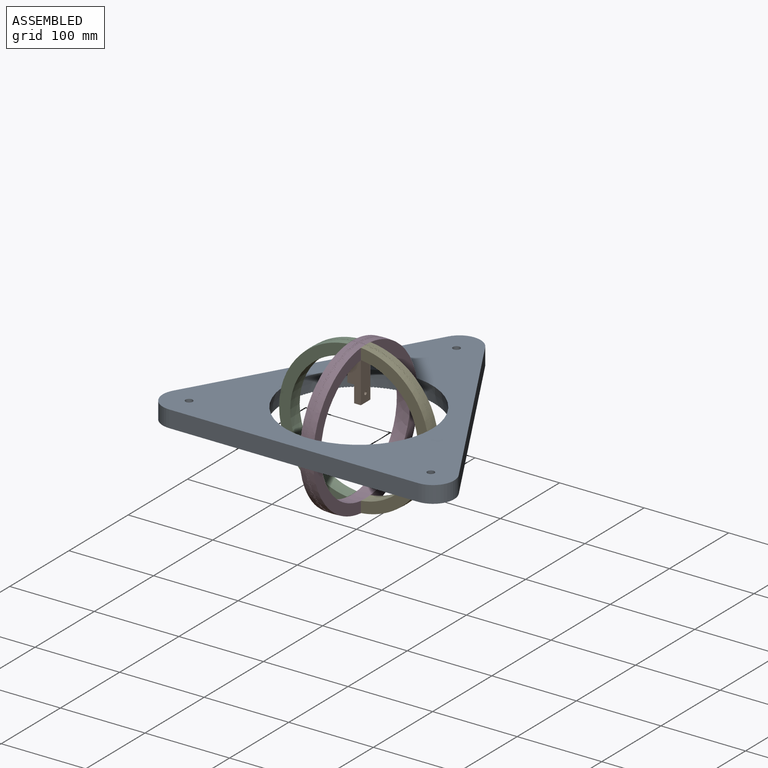
[diagram: assembled view]
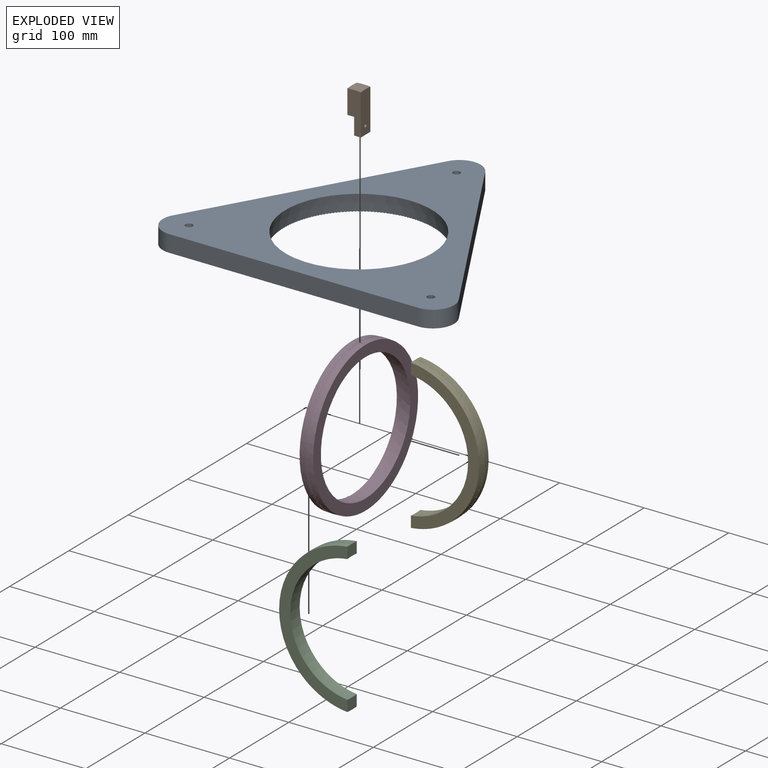
[diagram: exploded view]
GUIDED TOUR — MATED ASSEMBLY (Onshape document 3b96f11bba7c350fbcad6315, AutoMate assembly 3b96f11bba7c350fbcad6315_d8b739d6b2a3172a964b015b_78b090db85375e08f70aae51_default)

This assembly has 5 components, labeled P0..P4 below (a component is one placed occurrence of a part; the same part can appear more than once), held together by 4 mates. A mate is a constraint between two components; its type names the relative motion it leaves free:
  BALL — leaves all rotation about the listed point free (a ball joint),
  FASTENED — locks the two components together rigidly (no relative motion).
Axis/direction vectors are unit vectors and 'through' points are millimeter coordinates, both in the assembly's world frame.

MATES
  1. FASTENED "Fastened 3": P1 <-> P4, direction (0.000, 0.000, 1.000) through (-41.39, -45.96, -4.62) mm
  2. FASTENED "Fastened 1": P2 <-> P3, direction (1.000, 0.000, 0.000) through (-57.39, -53.96, 2.19) mm
  3. FASTENED "Fastened 2": P4 <-> P3, direction (-1.000, 0.000, 0.000) through (-41.39, -53.96, 2.19) mm
  4. BALL "Ball 1": P3 <-> P0, direction (0.000, 0.000, 1.000) through (-49.39, -53.96, -79.95) mm

ASSEMBLY ORDER
  1. P3 — the base component [order verified]
  2. P4 [order verified]
  3. P0 [order verified]
  4. P1 [order verified]
  5. P2 [order verified]
(P2 verified with a relaxed clearance tolerance: the source model stores slight part interference there.)
Order-tag legend:
  [order verified] — this step's position reverses a verified removal order: the component was checked to insert without passing through the ones already placed.

Of the 5 components, 1 carries the full construction recipe — the FeatureScript program that regenerates the part's solid from scratch; the rest are supplied as boundary geometry only.
Each toured component is shown spotlighted twice — in the assembled view, then in the exploded view, where a leader line traces a displaced component back to its assembled socket (saturated green if recipe-attached, orange if geometry-only; every other component desaturated gray) — followed by its recipe or geometry summary and the mates that hold it.
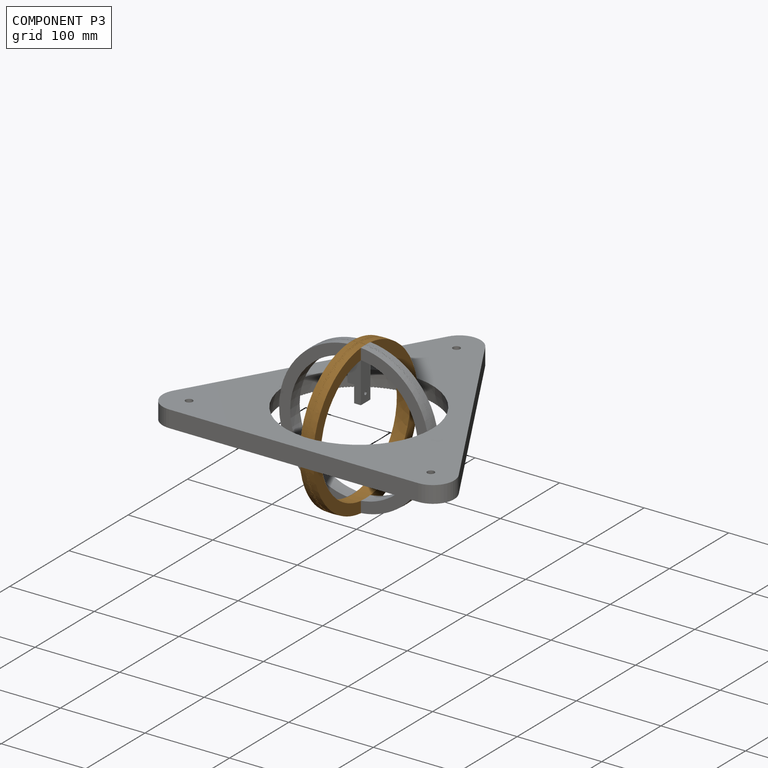
[diagram: component P3 — assembled]
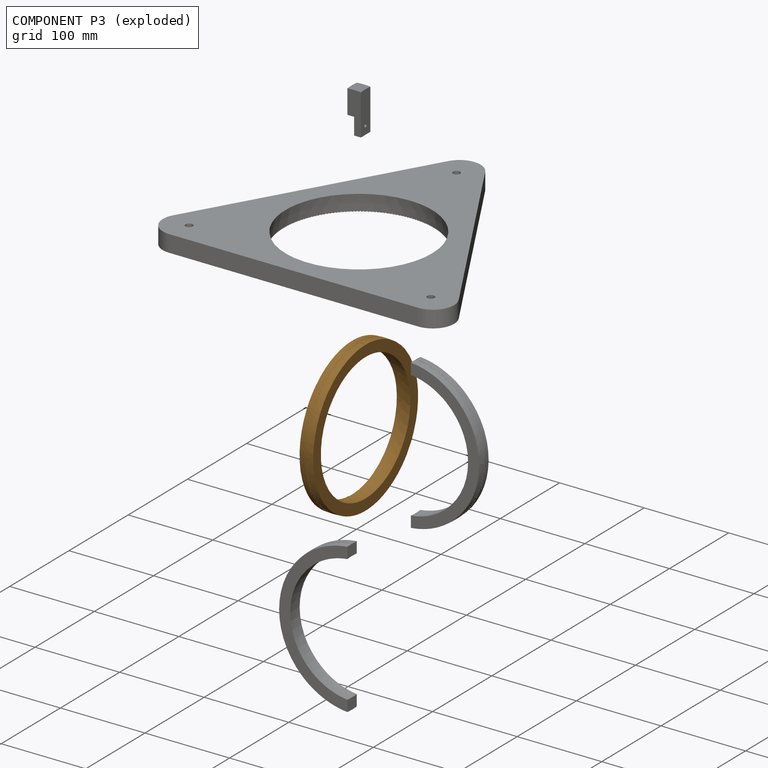
[diagram: component P3 — exploded]
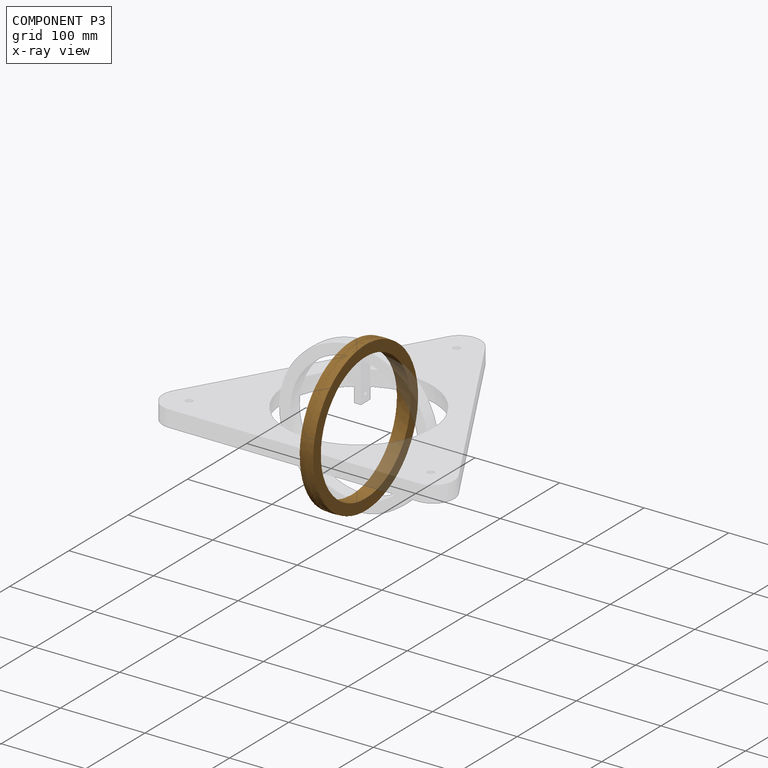
[diagram: component P3 — x-ray view]
COMPONENT P3 — geometry summary (no construction recipe available for this part):
  bounding box: 178.3 x 178.3 x 178.2 mm
  B-rep topology: 1 solid, 3728 faces, 19458 edges
  volume: 106122 mm^3 (2% of its bounding box)
  symmetry: revolution-symmetric about the x axis through its bounding-box center; mirror-symmetric across its y mid-plane, z mid-plane
Held by: FASTENED mate "Fastened 1" to P2; FASTENED mate "Fastened 2" to P4; BALL mate "Ball 1" to P0.
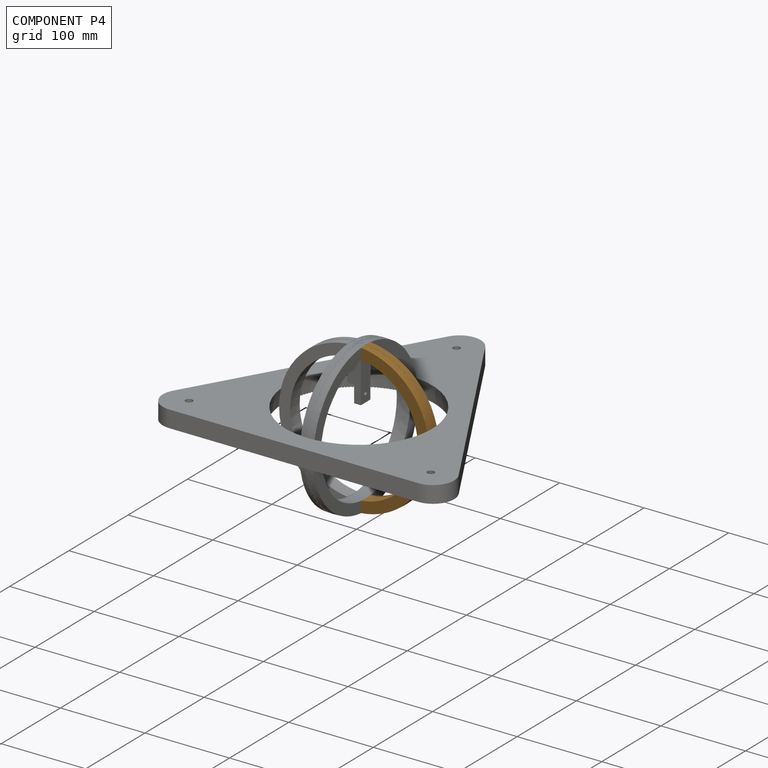
[diagram: component P4 — assembled]
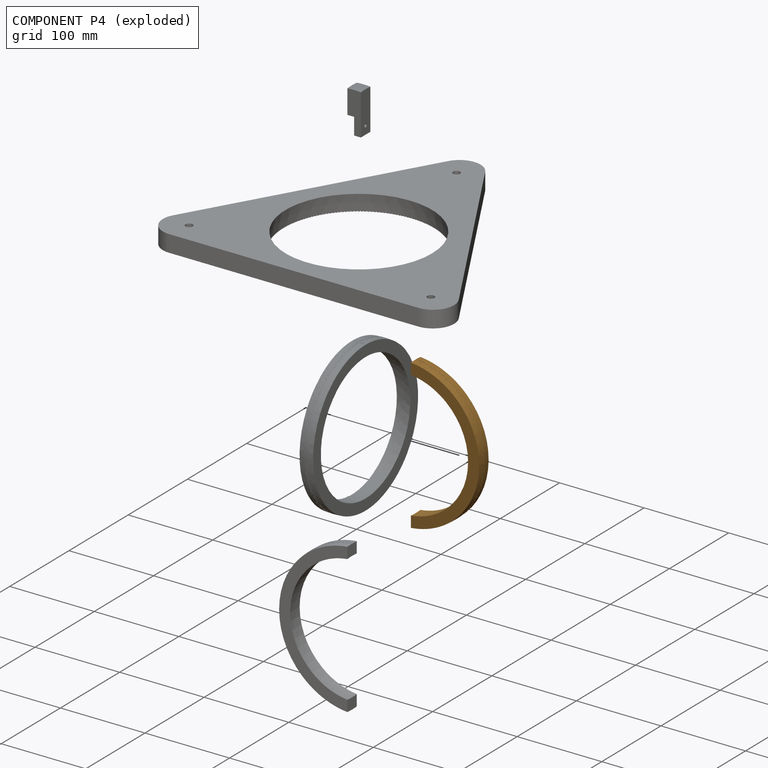
[diagram: component P4 — exploded]
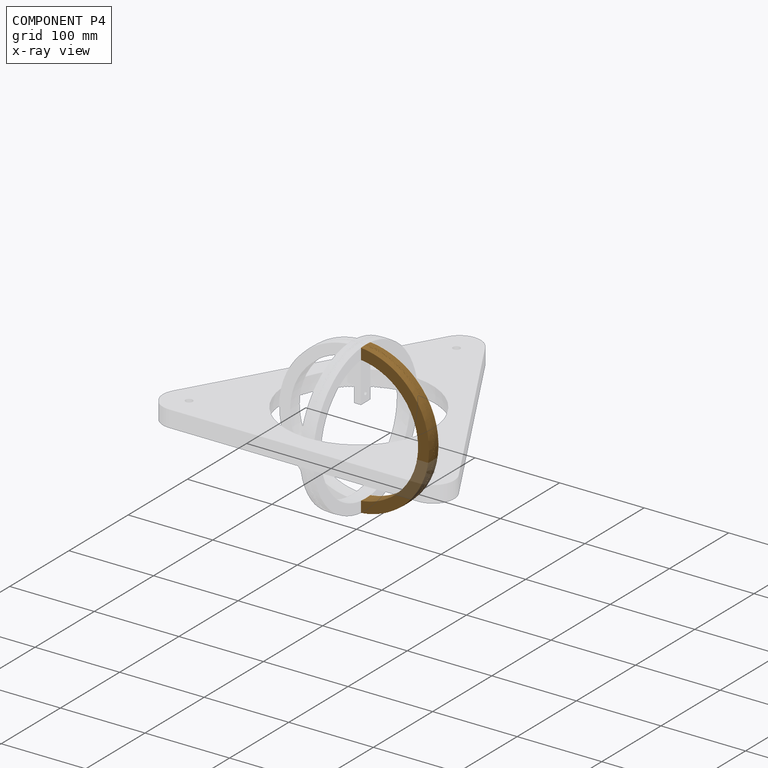
[diagram: component P4 — x-ray view]
COMPONENT P4 — geometry summary (no construction recipe available for this part):
  bounding box: 177.5 x 126.1 x 83.6 mm
  B-rep topology: 1 solid, 1670 faces, 8724 edges
  volume: 50625 mm^3 (3% of its bounding box)
  symmetry: 2-fold rotationally symmetric about the y axis; mirror-symmetric across its x mid-plane, z mid-plane
Held by: FASTENED mate "Fastened 3" to P1; FASTENED mate "Fastened 2" to P3.
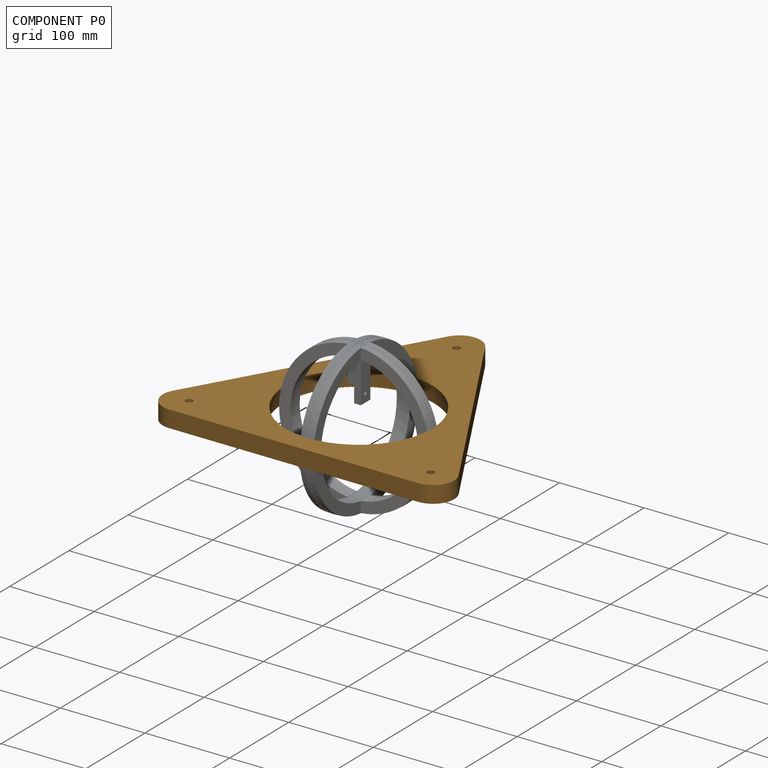
[diagram: component P0 — assembled]
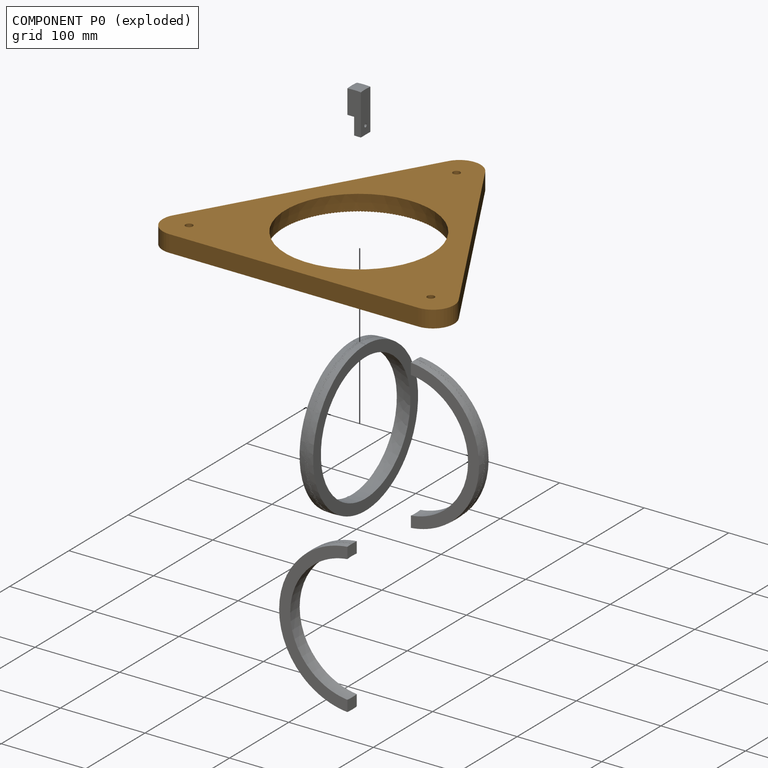
[diagram: component P0 — exploded]
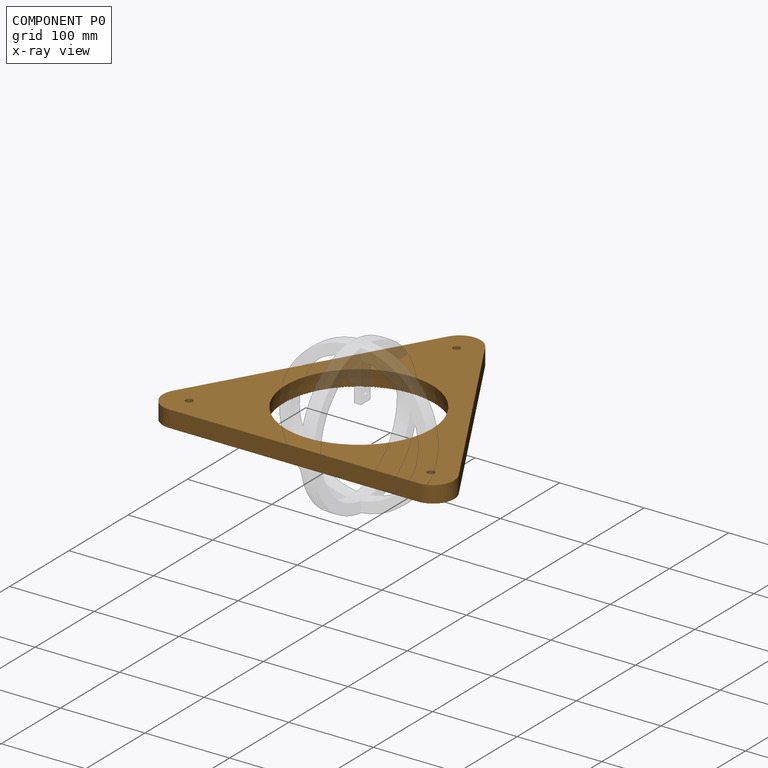
[diagram: component P0 — x-ray view]
COMPONENT P0 — geometry summary (no construction recipe available for this part):
  bounding box: 344.4 x 305.0 x 20.0 mm
  B-rep topology: 1 solid, 752 faces, 4494 edges
  volume: 737293 mm^3 (35% of its bounding box)
  symmetry: mirror-symmetric across its x mid-plane
Held by: BALL mate "Ball 1" to P3.
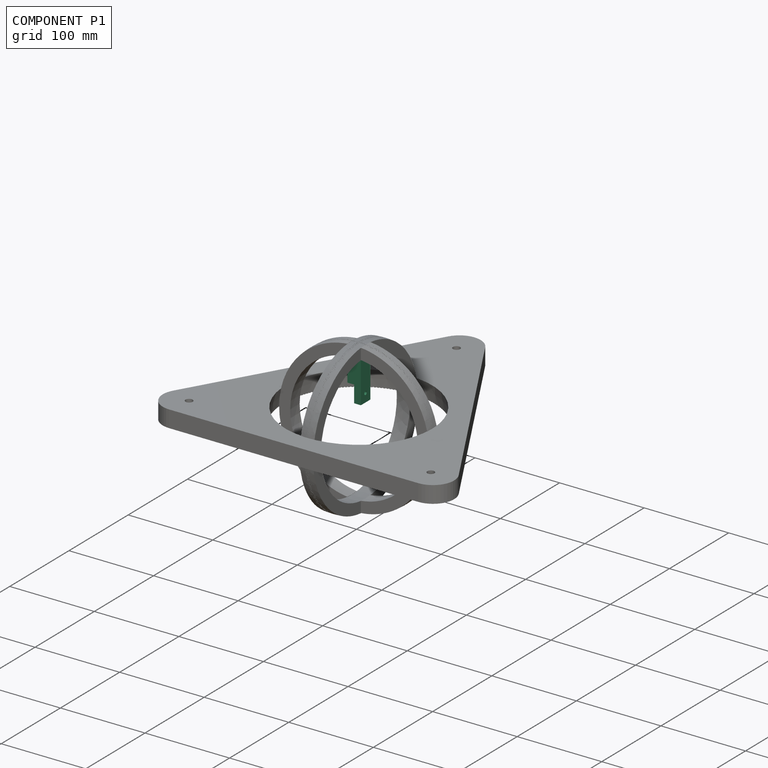
[diagram: component P1 — assembled]
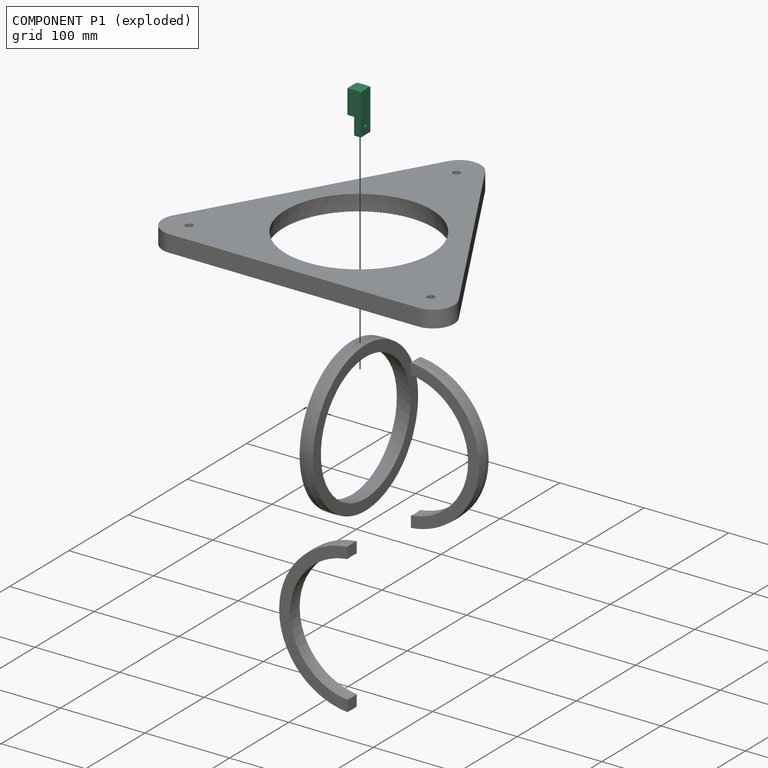
[diagram: component P1 — exploded]
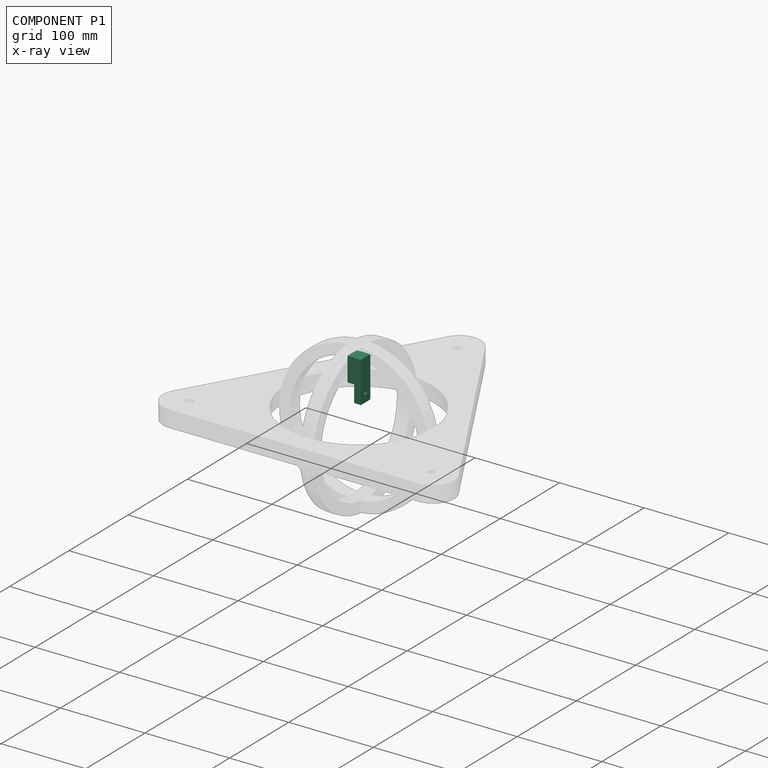
[diagram: component P1 — x-ray view]
COMPONENT P1 — recipe-attached (CADFS 00660564, mesh-verified: the recipe's output STEP matches this component's geometry to below the mesh-comparison resolution (tessellation chordal tolerance ~0.081 mm)).
Held by: FASTENED mate "Fastened 3" to P4.
Construction recipe (FeatureScript — the CAD program that rebuilds this solid; sketch coordinates are in the units given by the * unit suffixes, e.g. mm):

FeatureScript 1540;
import(path : "onshape/std/geometry.fs", version : "1540.0");
import(path : "onshape/std/common.fs", version : "1540.0");
const mm = millimeter;
const VERTEX = EntityType.VERTEX;
const EDGE = EntityType.EDGE;
const FACE = EntityType.FACE;
const BODY = EntityType.BODY;
function v(x, y){return vector(x, y);}
function OD(order){return orderDisambiguation(order);}
function OSD(set){return originalSetDisambiguation(set);}
function TD(topology){return topologyDisambiguation(topology);}
function TDD(query){return trueDependencyDisambiguation(query);}
function sQuery(a, b, c) {return sketchEntityQuery(a, b, c);}

annotation { "Feature Type Name" : "Feature", "Feature Type Description" : "" }
export const myFeature = defineFeature(function(context is Context, id is Id, definition is map)
    precondition{}
    {
        {
            var Q0;
            Q0=qCreatedBy(makeId("Front.planeOp"),FACE);
            var sketch = newSketch(context, id + "F0", { "sketchPlane" : qUnion([Q0])});
            skArc(sketch, "E0", {"start": v(0, 89) * mm, "mid": v(-89, 0) * mm, "end": v(0, -89) * mm});
            skLineSegment(sketch, "E1", {"start": v(0, 89) * mm, "end": v(0, -89) * mm});
            skSolve(sketch);
        }
        {
            var Q0;
            Q0=makeQuery(id+"F0.imprint","IMPRINT",FACE,{"disambiguationData":[TD([[makeQuery(id+"F0.imprint","IMPRINT",EDGE,{"derivedFrom":sQuery(id+"F0.wireOp",EDGE,"E0")}),1.0]])]});
            var Q1;
            Q1=sQuery(id+"F0.wireOp",EDGE,"E1");
            revolve(context, id + "F1", {"entities" : qUnion([Q0]), "axis" : qUnion([Q1]), "revolveType" : RevolveType.FULL});
        }
        {
            var Q0;
            Q0=qCreatedBy(makeId("Top.planeOp"),FACE);
            var sketch = newSketch(context, id + "F2", { "sketchPlane" : qUnion([Q0])});
            skLineSegment(sketch, "E2.bottom", {"start": v(-8, -8) * mm, "end": v(8, -8) * mm});
            skLineSegment(sketch, "E2.top", {"start": v(-8, 8) * mm, "end": v(8, 8) * mm});
            skLineSegment(sketch, "E2.left", {"start": v(-8, -8) * mm, "end": v(-8, 8) * mm});
            skLineSegment(sketch, "E2.right", {"start": v(8, -8) * mm, "end": v(8, 8) * mm});
            skLineSegment(sketch, "E3", {"start": v(0, 0) * mm, "end": v(0, -32.26) * mm, "construction": true});
            skLineSegment(sketch, "E4", {"start": v(0, 0) * mm, "end": v(-29.45, 0) * mm, "construction": true});
            skSolve(sketch);
        }
        {
            var Q0;
            Q0 = qSketchRegion(id + "F2", true);
            extrude(context, id + "F3", {"entities" : qUnion([Q0]), "operationType" : NewBodyOperationType.INTERSECT, "depth" : 200 * mm, "offsetDistance" : 25 * mm, "symmetric" : true});
        }
        {
            var Q0;
            Q0=qCreatedBy(makeId("Front.planeOp"),FACE);
            var sketch = newSketch(context, id + "F4", { "sketchPlane" : qUnion([Q0])});
            skLineSegment(sketch, "E5.bottom", {"start": v(10, 40) * mm, "end": v(-10, 40) * mm});
            skLineSegment(sketch, "E5.top", {"start": v(10, -100) * mm, "end": v(-10, -100) * mm});
            skLineSegment(sketch, "E5.left", {"start": v(10, 40) * mm, "end": v(10, -100) * mm});
            skLineSegment(sketch, "E5.right", {"start": v(-10, 40) * mm, "end": v(-10, -100) * mm});
            skSolve(sketch);
        }
        {
            var Q0;
            Q0=makeQuery(id+"F4.imprint","IMPRINT",FACE,{"disambiguationData":[TD([[makeQuery(id+"F4.imprint","IMPRINT",EDGE,{"derivedFrom":sQuery(id+"F4.wireOp",EDGE,"E5.bottom")}),1.0]])]});
            extrude(context, id + "F5", {"entities" : qUnion([Q0]), "operationType" : NewBodyOperationType.REMOVE, "oppositeDirection" : true, "depth" : 25 * mm, "offsetDistance" : 25 * mm, "symmetric" : true});
        }
        {
            var Q0;
            Q0=qCreatedBy(makeId("Right.planeOp"),FACE);
            var sketch = newSketch(context, id + "F6", { "sketchPlane" : qUnion([Q0])});
            skLineSegment(sketch, "E6.bottom", {"start": v(8, 60) * mm, "end": v(-8, 60) * mm});
            skLineSegment(sketch, "E6.top", {"start": v(8, 40) * mm, "end": v(-8, 40) * mm});
            skLineSegment(sketch, "E6.left", {"start": v(8, 60) * mm, "end": v(8, 40) * mm});
            skLineSegment(sketch, "E6.right", {"start": v(-8, 60) * mm, "end": v(-8, 40) * mm});
            skSolve(sketch);
        }
        {
            var Q0;
            Q0 = qSketchRegion(id + "F6", true);
            extrude(context, id + "F7", {"entities" : qUnion([Q0]), "operationType" : NewBodyOperationType.REMOVE, "oppositeDirection" : true, "depth" : 25 * mm, "offsetDistance" : 25 * mm});
        }
        {
            var Q0;
            Q0=makeQuery(id+"F7.boolean.opBoolean","COPY",FACE,{"derivedFrom":makeQuery(id+"F7.opExtrude","CAP_FACE",FACE,{"disambiguationData":[OSD([sQuery(id+"F6.wireOp",EDGE,"E6.bottom"),sQuery(id+"F6.wireOp",EDGE,"E6.top"),sQuery(id+"F6.wireOp",EDGE,"E6.left"),sQuery(id+"F6.wireOp",EDGE,"E6.right")])],"isStart":true})});
            var sketch = newSketch(context, id + "F8", { "sketchPlane" : qUnion([Q0])});
            skLineSegment(sketch, "E7", {"start": v(-8, 40) * mm, "end": v(8, 60) * mm, "construction": true});
            skLineSegment(sketch, "E8", {"start": v(-8, 60) * mm, "end": v(8, 40) * mm, "construction": true});
            skPoint(sketch, "E9", {"position": v(0, 50) * mm});
            skSolve(sketch);
        }
        {
            var Q0;
            Q0=sQuery(id+"F8.wireOp",VERTEX,"E9");
            var Q1;
            Q1=makeQuery(id+"F1.opRevolve","SWEPT_BODY",BODY,{"disambiguationData":[OSD([sQuery(id+"F0.wireOp",EDGE,"E0"),sQuery(id+"F0.wireOp",EDGE,"E1")])]});
            hole(context, id + "F9", {"style" : HoleStyle.SIMPLE, "endStyle" : HoleEndStyle.THROUGH, "standardTappedOrClearance" : lookupTablePath({ "standard" : "ISO", "engagement" : "75%", "pitch" : "0.8 mm", "size" : "M5", "type" : "Tapped" }), "standardBlindInLast" : lookupTablePath({ "standard" : "ISO", "engagement" : "75%", "pitch" : "0.8 mm", "size" : "M5", "type" : "Tapped" }), "holeDiameter" : 4.2 * mm, "majorDiameter" : 5 * mm, "showTappedDepth" : true, "isTappedThrough" : true, "tappedDepth" : 12 * mm, "tapClearance" : 3, "startFromSketch" : true, "locations" : qUnion([Q0]), "scope" : qUnion([Q1])});
        }
    });
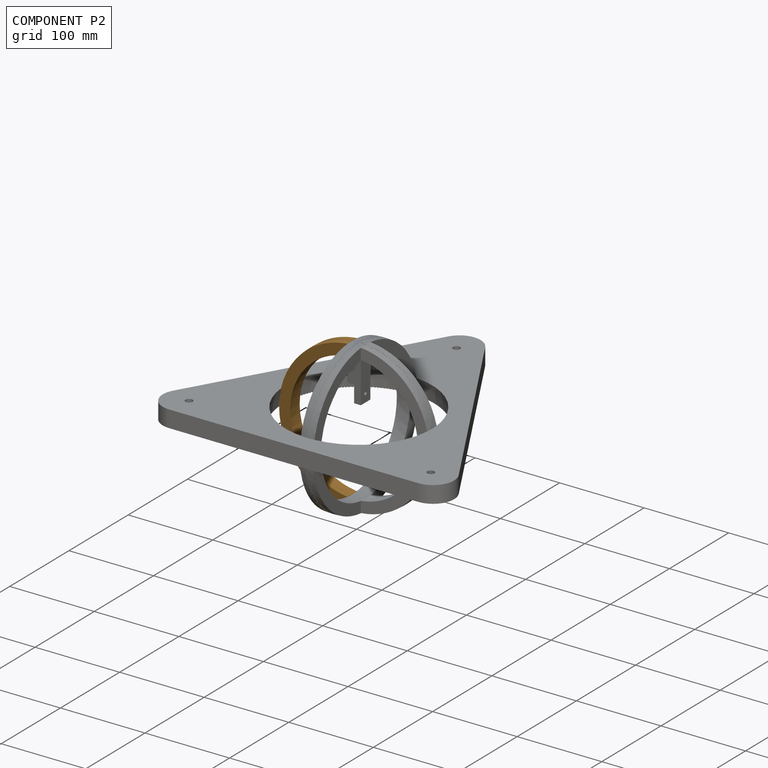
[diagram: component P2 — assembled]
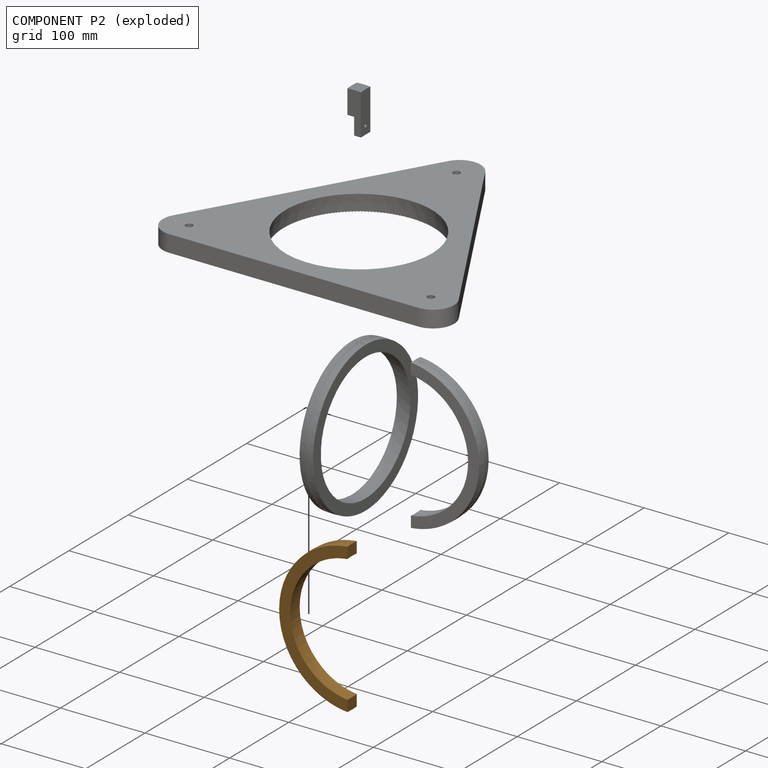
[diagram: component P2 — exploded]
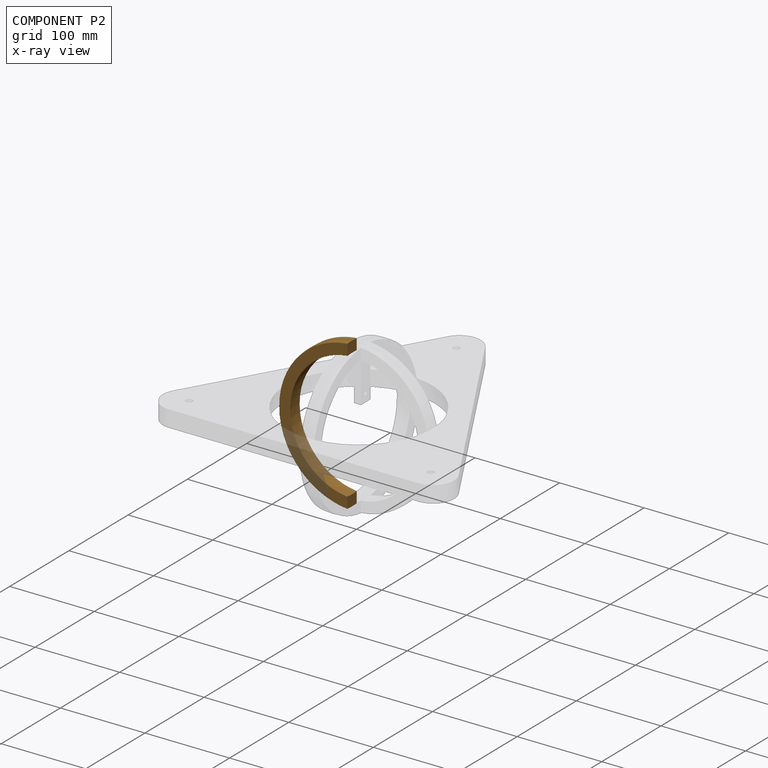
[diagram: component P2 — x-ray view]
COMPONENT P2 — geometry summary (no construction recipe available for this part):
  bounding box: 177.5 x 126.1 x 83.6 mm
  B-rep topology: 1 solid, 1670 faces, 8724 edges
  volume: 50625 mm^3 (3% of its bounding box)
  symmetry: 2-fold rotationally symmetric about the y axis; mirror-symmetric across its x mid-plane, z mid-plane
Held by: FASTENED mate "Fastened 1" to P3.
PROVENANCE & LICENSES
Assembly (occurrences, transforms, mates, per-part STEP geometry): AutoMate dataset, Zenodo record 7776208, CC0.
Construction recipes: CADFS (HuggingFace VladPyatov/CADFS, CC-BY-4.0, layered over the ABC dataset), FeatureScript reconstruction programs keyed by ABC model id.
Join: ABC meta listings map ABC model id -> Onshape documentId; within a shared document, parts are matched by geometric signature (bounding-box dims + volume at 0.1% relative tolerance, exact B-rep face/solid counts).
Verification: 1 of this assembly's 5 components carries a recipe attachment, and every attachment is mesh-verified: the CADFS STEP and the AutoMate member STEP were compared as meshes in their shared local frame (symmetric sampled-point-to-mesh distance); worst across the 1 attachment: below the mesh-comparison resolution (tessellation chordal tolerance ~0.081 mm) on a 54 mm part.
Renders: orthographic iso camera (az 35 / el 25); the floor grid conveys scale (grid pitch printed in each image; no ruler). In the exploded view each component is displaced by its stored offset vector: the offsets alone carry the explosion direction (mate normal/axis signs are not orientation cues and do not encode it), and separation distances are assigned per mate-chain, not proportionally to assembly-order depth.
